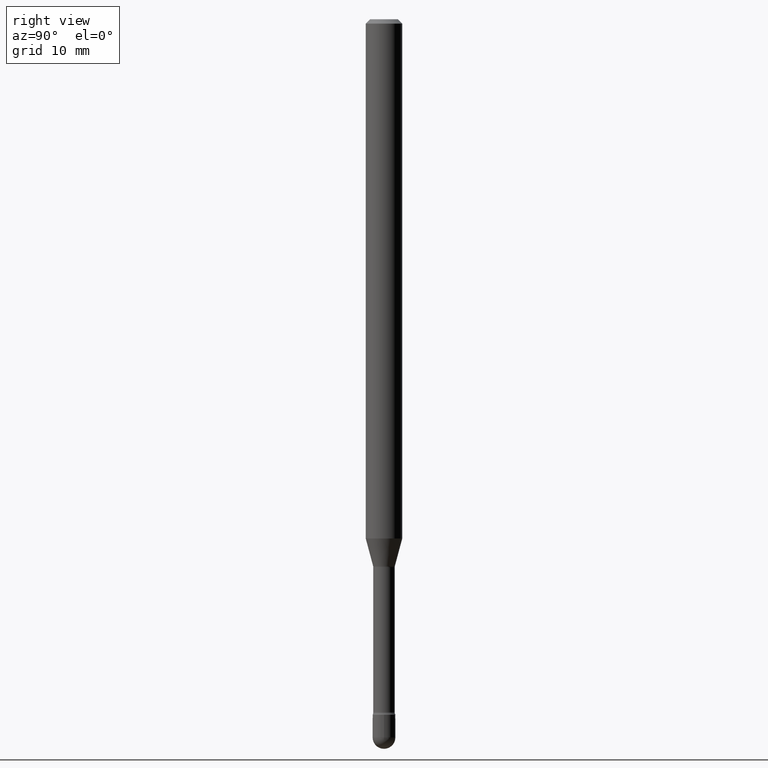
[diagram: clean part render]
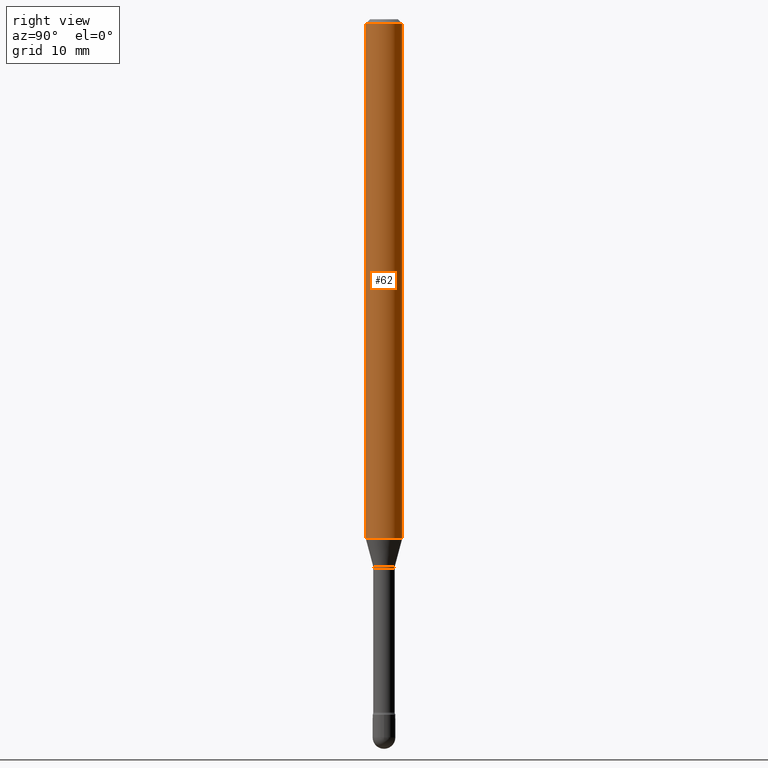
[diagram: same view with one face highlighted and labeled with its STEP entity id]
A machine part, right view. The second image highlights one B-rep face of the part: STEP entity #62.
In plain terms, the highlighted cylindrical surface (edge-blend (fillet) strip) has radius 1.5875 mm, axis along (-0, 0, 1).
Its self-contained STEP definition (entity closure, byte-faithful):
#5 = FACE_OUTER_BOUND ( 'NONE', #262, .T. ) ;
#16 = EDGE_CURVE ( 'NONE', #313, #247, #386, .T. ) ;
#25 = EDGE_CURVE ( 'NONE', #143, #313, #507, .T. ) ;
#44 = CARTESIAN_POINT ( 'NONE',  ( -4.364351673553912750E-16, -0.06250000000000005551, -0.01499999999999986587 ) ) ;
#60 = CIRCLE ( 'NONE', #560, 0.06250000000000000000 ) ;
#62 = ADVANCED_FACE ( 'NONE', ( #5 ), #175, .T. ) ;
#80 = AXIS2_PLACEMENT_3D ( 'NONE', #342, #522, #443 ) ;
#83 = EDGE_CURVE ( 'NONE', #405, #247, #272, .T. ) ;
#116 = CARTESIAN_POINT ( 'NONE',  ( -4.364351673553484300E-16, -0.06250000000000624500, -1.779526486624344761 ) ) ;
#143 = VERTEX_POINT ( 'NONE', #116 ) ;
#164 = DIRECTION ( 'NONE',  ( -2.445432227505668971E-29, 3.491533721594072411E-15, 1.000000000000000000 ) ) ;
#175 = CYLINDRICAL_SURFACE ( 'NONE', #80, 0.06250000000000000000 ) ;
#189 = ORIENTED_EDGE ( 'NONE', *, *, #25, .F. ) ;
#208 = ORIENTED_EDGE ( 'NONE', *, *, #458, .T. ) ;
#212 = VECTOR ( 'NONE', #415, 39.37007874015748143 ) ;
#218 = DIRECTION ( 'NONE',  ( -2.445432227505668971E-29, 3.491533721594072411E-15, 1.000000000000000000 ) ) ;
#224 = CARTESIAN_POINT ( 'NONE',  ( 4.440892098501057077E-16, 0.06249999999999374806, -1.779526486624345205 ) ) ;
#247 = VERTEX_POINT ( 'NONE', #276 ) ;
#262 = EDGE_LOOP ( 'NONE', ( #208, #318, #468, #189 ) ) ;
#272 = LINE ( 'NONE', #451, #482 ) ;
#276 = CARTESIAN_POINT ( 'NONE',  ( 4.440892098501062993E-16, 0.06249999999999995143, -0.01500000000000030129 ) ) ;
#313 = VERTEX_POINT ( 'NONE', #44 ) ;
#318 = ORIENTED_EDGE ( 'NONE', *, *, #83, .T. ) ;
#342 = CARTESIAN_POINT ( 'NONE',  ( -1.169113584055446105E-44, 1.669184350826100908E-30, 4.780733988912460139E-16 ) ) ;
#386 = CIRCLE ( 'NONE', #455, 0.06250000000000000000 ) ;
#405 = VERTEX_POINT ( 'NONE', #224 ) ;
#412 = CARTESIAN_POINT ( 'NONE',  ( -4.364351673553916201E-16, -0.06250000000000000000, 6.962942564908755643E-16 ) ) ;
#415 = DIRECTION ( 'NONE',  ( -2.445432227505668691E-29, 3.491533721594072806E-15, 1.000000000000000000 ) ) ;
#443 = DIRECTION ( 'NONE',  ( -6.982962677686265922E-15, -1.000000000000000000, 3.491533721594072411E-15 ) ) ;
#451 = CARTESIAN_POINT ( 'NONE',  ( 4.440892098500625669E-16, 0.06250000000000000000, 2.598525412916165622E-16 ) ) ;
#455 = AXIS2_PLACEMENT_3D ( 'NONE', #543, #164, #460 ) ;
#458 = EDGE_CURVE ( 'NONE', #143, #405, #60, .T. ) ;
#460 = DIRECTION ( 'NONE',  ( -6.982962677686265922E-15, -1.000000000000000000, 3.483106191921935554E-15 ) ) ;
#468 = ORIENTED_EDGE ( 'NONE', *, *, #16, .F. ) ;
#482 = VECTOR ( 'NONE', #526, 39.37007874015748143 ) ;
#507 = LINE ( 'NONE', #412, #212 ) ;
#519 = DIRECTION ( 'NONE',  ( -6.982962677686265922E-15, -1.000000000000000000, 4.370956789862821150E-15 ) ) ;
#522 = DIRECTION ( 'NONE',  ( -2.445432227505668971E-29, 3.491533721594072411E-15, 1.000000000000000000 ) ) ;
#526 = DIRECTION ( 'NONE',  ( -2.445432227505668691E-29, 3.491533721594072806E-15, 1.000000000000000000 ) ) ;
#543 = CARTESIAN_POINT ( 'NONE',  ( 3.668148341258523687E-31, -5.237300582391137805E-17, -0.01500000000000008271 ) ) ;
#560 = AXIS2_PLACEMENT_3D ( 'NONE', #564, #218, #519 ) ;
#564 = CARTESIAN_POINT ( 'NONE',  ( 4.351711420091109402E-29, -6.213276736518723353E-15, -1.779526486624344983 ) ) ;